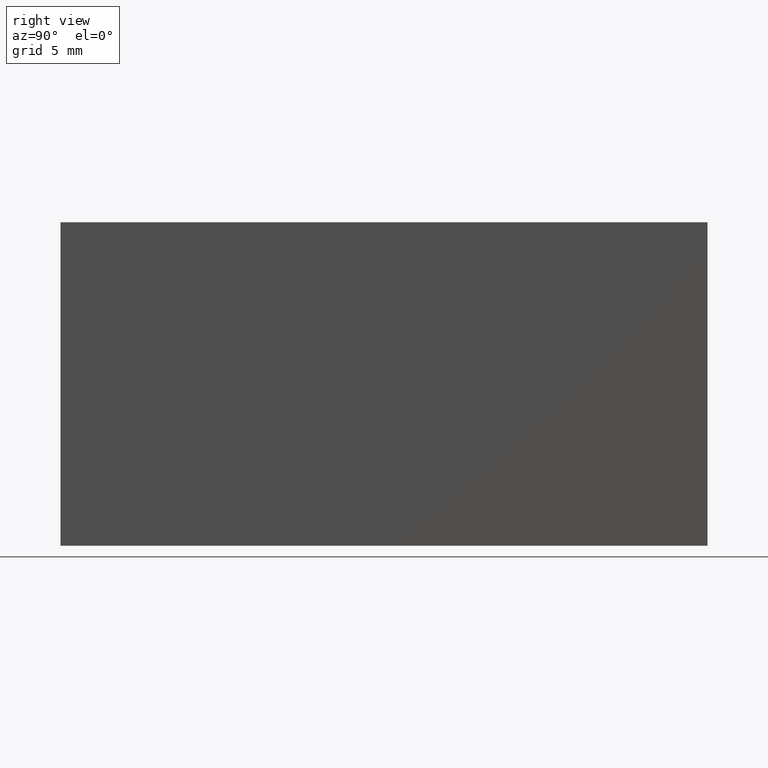
[diagram: clean part render]
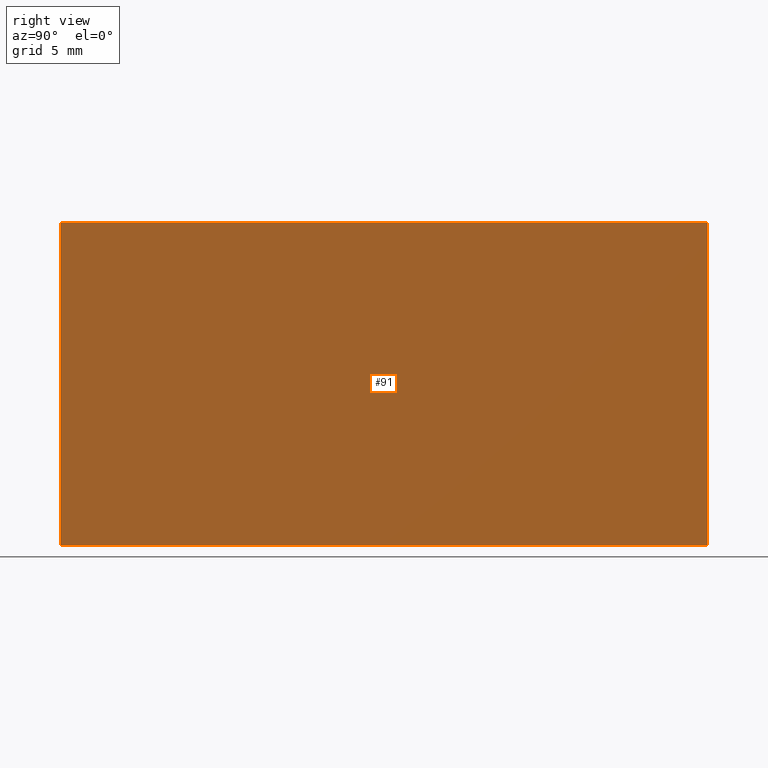
[diagram: same view with one face highlighted and labeled with its STEP entity id]
A machine part, right view. The second image highlights one B-rep face of the part: STEP entity #91.
In plain terms, the highlighted planar face has unit normal (-1, 0, 0).
Its self-contained STEP definition (entity closure, byte-faithful):
#2 = CARTESIAN_POINT ( 'NONE',  ( -1.874795665148728500, 0.0000000000000000000, 10.00000000000000000 ) ) ;
#4 = EDGE_CURVE ( 'NONE', #11, #109, #45, .T. ) ;
#6 = EDGE_CURVE ( 'NONE', #11, #108, #195, .T. ) ;
#9 = DIRECTION ( 'NONE',  ( 3.035766082959411900E-016, 0.0000000000000000000, 1.000000000000000000 ) ) ;
#11 = VERTEX_POINT ( 'NONE', #151 ) ;
#25 = ORIENTED_EDGE ( 'NONE', *, *, #4, .F. ) ;
#26 = ORIENTED_EDGE ( 'NONE', *, *, #32, .T. ) ;
#31 = EDGE_CURVE ( 'NONE', #109, #204, #52, .T. ) ;
#32 = EDGE_CURVE ( 'NONE', #108, #204, #158, .T. ) ;
#37 = CARTESIAN_POINT ( 'NONE',  ( -1.874795665148728500, 40.00000000000000000, 10.00000000000000000 ) ) ;
#42 = CARTESIAN_POINT ( 'NONE',  ( -1.874795665148734500, 40.00000000000000000, -10.00000000000000400 ) ) ;
#45 = LINE ( 'NONE', #42, #146 ) ;
#47 = VECTOR ( 'NONE', #177, 1000.000000000000000 ) ;
#52 = LINE ( 'NONE', #154, #199 ) ;
#58 = DIRECTION ( 'NONE',  ( -0.0000000000000000000, -1.000000000000000000, -0.0000000000000000000 ) ) ;
#65 = EDGE_LOOP ( 'NONE', ( #26, #105, #25, #183 ) ) ;
#91 = ADVANCED_FACE ( 'NONE', ( #132 ), #138, .F. ) ;
#102 = CARTESIAN_POINT ( 'NONE',  ( -1.874795665148734500, 40.00000000000000000, -10.00000000000000400 ) ) ;
#105 = ORIENTED_EDGE ( 'NONE', *, *, #31, .F. ) ;
#108 = VERTEX_POINT ( 'NONE', #2 ) ;
#109 = VERTEX_POINT ( 'NONE', #162 ) ;
#131 = AXIS2_PLACEMENT_3D ( 'NONE', #102, #196, #9 ) ;
#132 = FACE_OUTER_BOUND ( 'NONE', #65, .T. ) ;
#134 = VECTOR ( 'NONE', #198, 1000.000000000000000 ) ;
#138 = PLANE ( 'NONE',  #131 ) ;
#146 = VECTOR ( 'NONE', #147, 1000.000000000000000 ) ;
#147 = DIRECTION ( 'NONE',  ( -3.035766082959411900E-016, -0.0000000000000000000, -1.000000000000000000 ) ) ;
#151 = CARTESIAN_POINT ( 'NONE',  ( -1.874795665148728500, 40.00000000000000000, 10.00000000000000000 ) ) ;
#154 = CARTESIAN_POINT ( 'NONE',  ( -1.874795665148734500, 40.00000000000000000, -10.00000000000000400 ) ) ;
#158 = LINE ( 'NONE', #166, #134 ) ;
#159 = CARTESIAN_POINT ( 'NONE',  ( -1.874795665148734500, 0.0000000000000000000, -10.00000000000000400 ) ) ;
#162 = CARTESIAN_POINT ( 'NONE',  ( -1.874795665148734500, 40.00000000000000000, -10.00000000000000400 ) ) ;
#166 = CARTESIAN_POINT ( 'NONE',  ( -1.874795665148734500, 0.0000000000000000000, -10.00000000000000400 ) ) ;
#177 = DIRECTION ( 'NONE',  ( -0.0000000000000000000, -1.000000000000000000, -0.0000000000000000000 ) ) ;
#183 = ORIENTED_EDGE ( 'NONE', *, *, #6, .T. ) ;
#195 = LINE ( 'NONE', #37, #47 ) ;
#196 = DIRECTION ( 'NONE',  ( -1.000000000000000000, 0.0000000000000000000, 3.035766082959411900E-016 ) ) ;
#198 = DIRECTION ( 'NONE',  ( -3.035766082959411900E-016, -0.0000000000000000000, -1.000000000000000000 ) ) ;
#199 = VECTOR ( 'NONE', #58, 1000.000000000000000 ) ;
#204 = VERTEX_POINT ( 'NONE', #159 ) ;